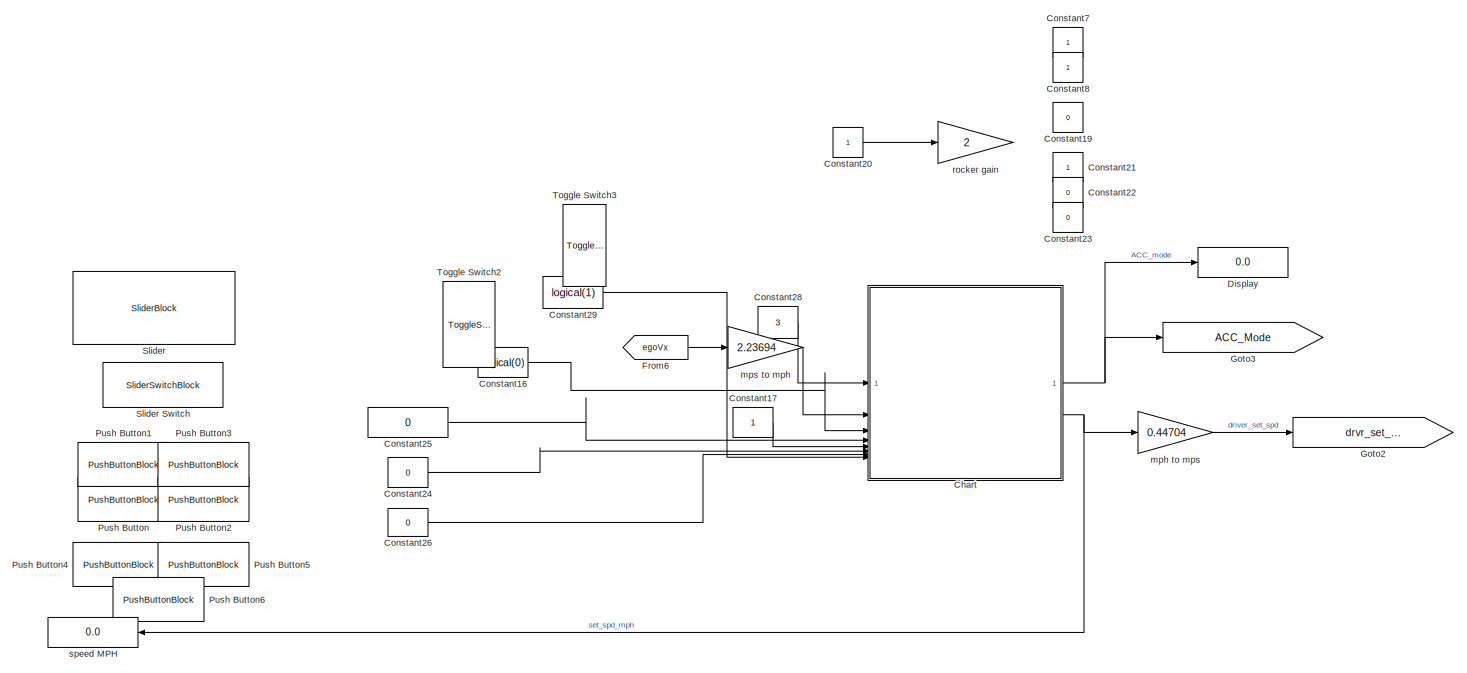
[diagram: root canvas - part 1/6, top center region]
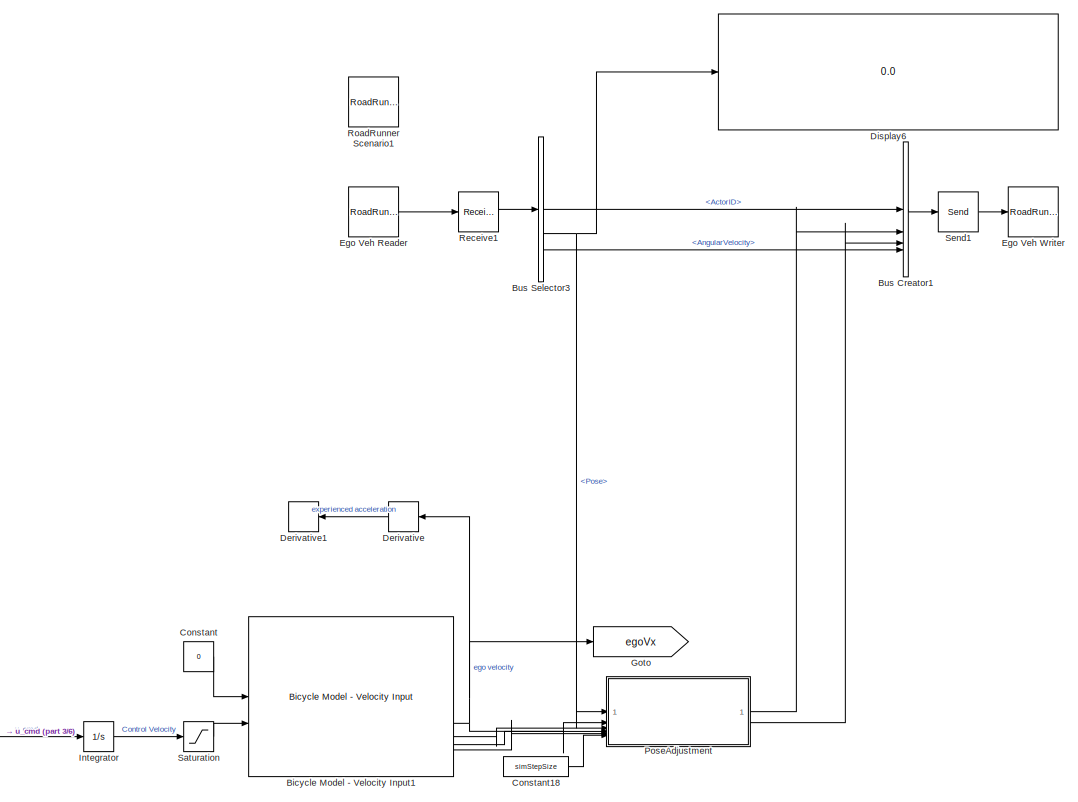
[diagram: root canvas - part 2/6, middle right region]
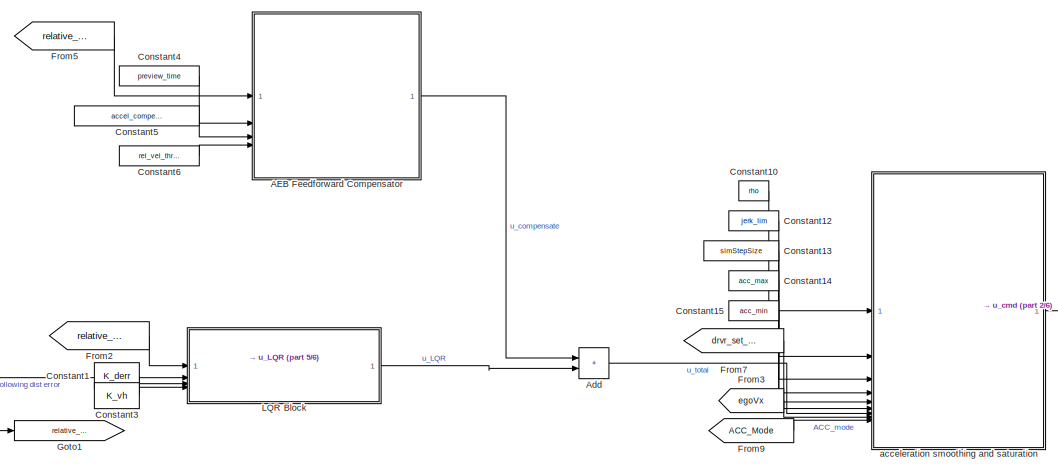
[diagram: root canvas - part 3/6, central region]
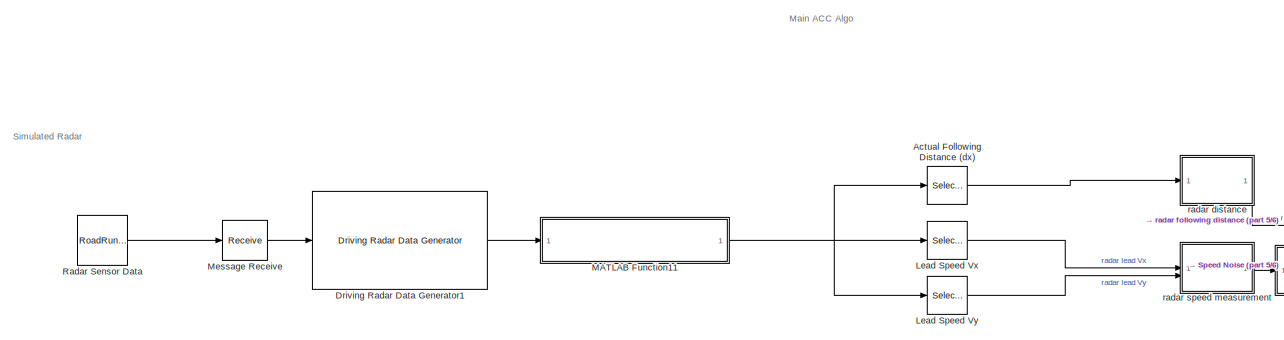
[diagram: root canvas - part 4/6, bottom left region]
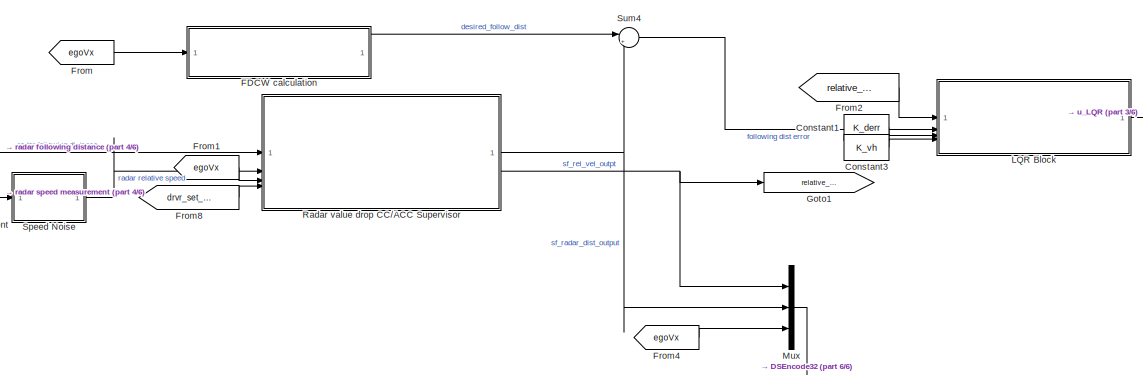
[diagram: root canvas - part 5/6, bottom center region]
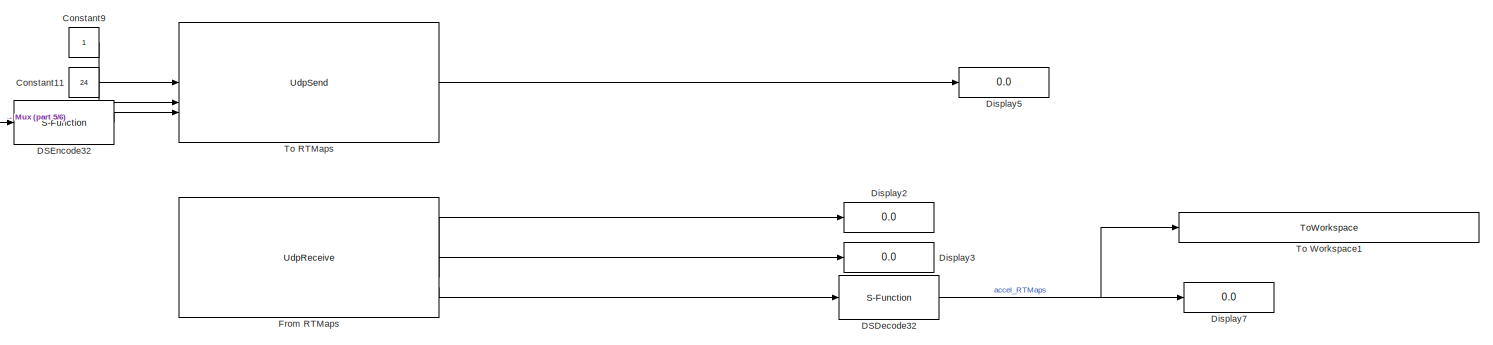
[diagram: root canvas - part 6/6, bottom right region]
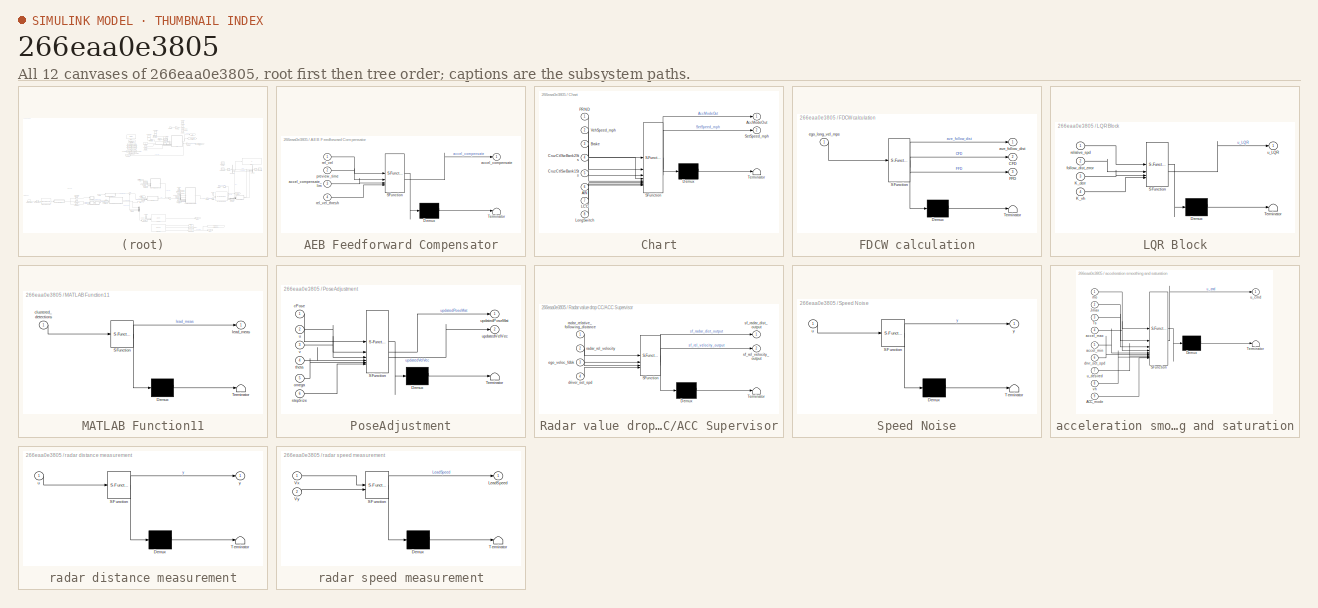
[diagram: thumbnail index - all 12 canvases of the model, root first then tree order]
MODEL slx_266eaa0e3805
KIND model
CONFIG AbsTol = auto
CONFIG EnableMultiTasking = off
CONFIG FixedStep = auto
CONFIG MaxStep = auto
CONFIG MinStep = auto
CONFIG RelTol = 1e-3
CONFIG SampleTimeConstraint = Unconstrained
CONFIG SolverName = VariableStepAuto
CONFIG StartTime = 0.0
CONFIG StopTime = 10.0
BLOCK [SubSystem] AEB Feedforward Compensator
  ErrorFcn = Stateflow.Translate.translate
  PermitHierarchicalResolution = ExplicitOnly
  SFBlockType = MATLAB Function
  TreatAsAtomicUnit = on
BLOCK [Demux] AEB Feedforward Compensator/ Demux 
  Outputs = 1
BLOCK [S-Function] AEB Feedforward Compensator/ SFunction 
  EnableBusSupport = on
  FunctionName = sf_sfun
  PortCounts = [4 2]
  SFcnIsStateOwnerBlock = off
  SFunctionDeploymentMode = off
  Tag = Stateflow S-Function 2
BLOCK [Terminator] AEB Feedforward Compensator/ Terminator 
BLOCK [Outport] AEB Feedforward Compensator/accel_compensate
BLOCK [Inport] AEB Feedforward Compensator/accel_compensate_lim
  Port = 3
BLOCK [Inport] AEB Feedforward Compensator/preview_time
  Port = 2
BLOCK [Inport] AEB Feedforward Compensator/rel_vel
BLOCK [Inport] AEB Feedforward Compensator/rel_vel_thresh
  Port = 4
BLOCK [Selector] Actual Following Distance (dx)
  IndexOptions = Index vector (dialog)
  Indices = [1]
  InputPortWidth = 6
  OutputSizes = 1
BLOCK [Sum] Add
  IconShape = rectangular
BLOCK [Reference] Bicycle Model - Velocity Input1  REF=autolibshared/Bicycle Model - Velocity Input
  LibrarySourceBlock = drivingscenarioandsensors/Bicycle Model - Velocity Input
  SourceBlock = autolibshared/Bicycle Model - Velocity Input
  SourceType = Vehicle Body 3DOF Lateral
BLOCK [BusCreator] Bus Creator1
  DisplayOption = bar
  InheritFromInputs = off
  Inputs = 4
  NonVirtualBus = on
  OutDataTypeStr = Bus: BusActorRuntime
BLOCK [BusSelector] Bus Selector3
  OutputSignals = ActorID,Pose,Velocity,AngularVelocity
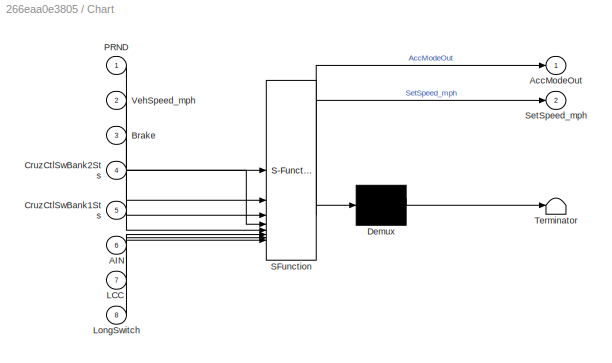
BLOCK [SubSystem] Chart
  ErrorFcn = Stateflow.Translate.translate
  PermitHierarchicalResolution = ExplicitOnly
  PortSchema = {"entries":[{"content":{"sides":[{"content":{"connectorIds":["In8","In1","In2","In3","In4","In5","In6","In7"]},"type":"ConnectorPlacement.EquallySpacedRectSide","uuid":"e85dcfe6-766c-482d-aa65-e7bbb4e3e1c4"},{"content":{"connectorIds":["Out1","Out2"],"side":"RIGHT"},"type":"ConnectorPlacement.EquallySpacedRectSide","uuid":"3867670f-d709-4b15-a3fa-6089a5f96600"},{"content":{"side":"TOP"},"type":"Co...<+271ch>
  SFBlockType = Chart
  TreatAsAtomicUnit = on
BLOCK [Demux] Chart/ Demux 
  Outputs = 1
BLOCK [S-Function] Chart/ SFunction 
  EnableBusSupport = on
  FunctionName = sf_sfun
  PortCounts = [8 3]
  SFcnIsStateOwnerBlock = off
  SFunctionDeploymentMode = off
  Tag = Stateflow S-Function 5
BLOCK [Terminator] Chart/ Terminator 
BLOCK [Inport] Chart/AIN
  Port = 6
BLOCK [Outport] Chart/AccModeOut
BLOCK [Inport] Chart/Brake
  Port = 3
BLOCK [Inport] Chart/CruzCtlSwBank1Sts
  Port = 5
BLOCK [Inport] Chart/CruzCtlSwBank2Sts
  Port = 4
BLOCK [Inport] Chart/LCC
  Port = 7
BLOCK [Inport] Chart/LongSwitch
  Port = 8
BLOCK [Inport] Chart/PRND
BLOCK [Outport] Chart/SetSpeed_mph
  Port = 2
BLOCK [Inport] Chart/VehSpeed_mph
  Port = 2
BLOCK [Constant] Constant
  Value = 0
BLOCK [Constant] Constant1
  SampleTime = simStepSize
  Value = K_derr
BLOCK [Constant] Constant10
  Value = rho
BLOCK [Constant] Constant11
  Value = 24
BLOCK [Constant] Constant12
  Value = jerk_lim
BLOCK [Constant] Constant13
  Value = simStepSize
BLOCK [Constant] Constant14
  Value = acc_max
BLOCK [Constant] Constant15
  Value = acc_min
BLOCK [Constant] Constant16
  OutDataTypeStr = boolean
  Value = logical(0)
BLOCK [Constant] Constant17
BLOCK [Constant] Constant18
  Value = simStepSize
BLOCK [Constant] Constant19
  Value = 0
BLOCK [Constant] Constant20
BLOCK [Constant] Constant21
BLOCK [Constant] Constant22
  Value = 0
BLOCK [Constant] Constant23
  Value = 0
BLOCK [Constant] Constant24
  OutDataTypeStr = boolean
  Value = 0
BLOCK [Constant] Constant25
  Value = 0
BLOCK [Constant] Constant26
  OutDataTypeStr = boolean
  Value = 0
BLOCK [Constant] Constant28
  Value = 3
BLOCK [Constant] Constant29
  OutDataTypeStr = boolean
  Value = logical(1)
BLOCK [Constant] Constant3
  SampleTime = simStepSize
  Value = K_vh
BLOCK [Constant] Constant4
  Value = preview_time
BLOCK [Constant] Constant5
  Value = accel_compensate_lim
BLOCK [Constant] Constant6
  Value = rel_vel_thresh
BLOCK [Constant] Constant7
BLOCK [Constant] Constant8
  NameLocation = left
BLOCK [Constant] Constant9
BLOCK [S-Function] DSDecode32 
  EnableBusSupport = off
  FunctionName = ds867c_eth_decode32_sfcn
  Parameters = byteordering,offset,auto_offset,datatype,one_datatype,sampletime
  SFcnIsStateOwnerBlock = off
  SFunctionDeploymentMode = off
BLOCK [S-Function] DSEncode32
  EnableBusSupport = off
  FunctionName = ds867c_eth_encode32_sfcn
  Parameters = byteordering,offset,auto_offset,datatype,one_datatype,sampletime
  SFcnIsStateOwnerBlock = off
  SFunctionDeploymentMode = off
BLOCK [Derivative] Derivative
BLOCK [Derivative] Derivative1
BLOCK [Display] Display
  Decimation = 1
BLOCK [Display] Display2
  Decimation = 1
BLOCK [Display] Display3
  Decimation = 1
BLOCK [Display] Display5
  Decimation = 1
BLOCK [Display] Display6
  Decimation = 1
BLOCK [Display] Display7
  Decimation = 1
BLOCK [Reference] Driving Radar Data Generator1  REF=drivingscenarioandsensors/Driving Radar Data Generator
  SourceBlock = drivingscenarioandsensors/Driving Radar Data Generator
  SourceType = drivingRadarDataGenerator
BLOCK [Reference] Ego Veh Reader  REF=roadrunnerscenario/RoadRunner Scenario
Reader
  SourceBlock = roadrunnerscenario/RoadRunner Scenario\nReader
BLOCK [Reference] Ego Veh Writer  REF=roadrunnerscenario/RoadRunner Scenario
Writer
  SourceBlock = roadrunnerscenario/RoadRunner Scenario\nWriter
BLOCK [SubSystem] FDCW calculation
  ErrorFcn = Stateflow.Translate.translate
  PermitHierarchicalResolution = ExplicitOnly
  SFBlockType = MATLAB Function
  TreatAsAtomicUnit = on
BLOCK [Demux] FDCW calculation/ Demux 
  Outputs = 1
BLOCK [S-Function] FDCW calculation/ SFunction 
  EnableBusSupport = on
  FunctionName = sf_sfun
  PortCounts = [1 4]
  SFcnIsStateOwnerBlock = off
  SFunctionDeploymentMode = off
  Tag = Stateflow S-Function 23
BLOCK [Terminator] FDCW calculation/ Terminator 
BLOCK [Outport] FDCW calculation/CFD
  Port = 2
BLOCK [Outport] FDCW calculation/FFD
  Port = 3
BLOCK [Outport] FDCW calculation/ave_follow_dist
BLOCK [Inport] FDCW calculation/ego_long_vel_mps
BLOCK [From] From
  GotoTag = egoVx
BLOCK [Reference] From RTMaps  REF=dsa_UDP_Blockset/UdpReceive
  SourceBlock = dsa_UDP_Blockset/UdpReceive
  SourceType = DSA_UDP_RECEIVE
BLOCK [From] From1
  GotoTag = egoVx
BLOCK [From] From2
  GotoTag = relative_velocity
BLOCK [From] From3
  GotoTag = egoVx
BLOCK [From] From4
  GotoTag = egoVx
BLOCK [From] From5
  GotoTag = relative_velocity
BLOCK [From] From6
  GotoTag = egoVx
BLOCK [From] From7
  GotoTag = drvr_set_spd
BLOCK [From] From8
  GotoTag = drvr_set_spd
BLOCK [From] From9
  GotoTag = ACC_Mode
BLOCK [Goto] Goto
  GotoTag = egoVx
BLOCK [Goto] Goto1
  GotoTag = relative_velocity
BLOCK [Goto] Goto2
  GotoTag = drvr_set_spd
BLOCK [Goto] Goto3
  GotoTag = ACC_Mode
BLOCK [Integrator] Integrator
BLOCK [SubSystem] LQR Block
  ErrorFcn = Stateflow.Translate.translate
  PermitHierarchicalResolution = ExplicitOnly
  SFBlockType = MATLAB Function
  SystemSampleTime = simStepSize
  TreatAsAtomicUnit = on
BLOCK [Demux] LQR Block/ Demux 
  Outputs = 1
BLOCK [S-Function] LQR Block/ SFunction 
  EnableBusSupport = on
  FunctionName = sf_sfun
  PortCounts = [4 2]
  SFcnIsStateOwnerBlock = off
  SFunctionDeploymentMode = off
  Tag = Stateflow S-Function 1
BLOCK [Terminator] LQR Block/ Terminator 
BLOCK [Inport] LQR Block/K_derr
  Port = 3
BLOCK [Inport] LQR Block/K_vh
  Port = 4
BLOCK [Inport] LQR Block/follow_dist_error
  Port = 2
BLOCK [Inport] LQR Block/relative_spd
BLOCK [Outport] LQR Block/u_LQR
BLOCK [Selector] Lead Speed Vx
  IndexOptions = Index vector (dialog)
  Indices = 4
  InputPortWidth = 6
  OutputSizes = 1
BLOCK [Selector] Lead Speed Vy
  IndexOptions = Index vector (dialog)
  Indices = 5
  InputPortWidth = 6
  NameLocation = top
  OutputSizes = 1
BLOCK [SubSystem] MATLAB Function11
  ErrorFcn = Stateflow.Translate.translate
  PermitHierarchicalResolution = ExplicitOnly
  SFBlockType = MATLAB Function
  TreatAsAtomicUnit = on
BLOCK [Demux] MATLAB Function11/ Demux 
  Outputs = 1
BLOCK [S-Function] MATLAB Function11/ SFunction 
  EnableBusSupport = on
  FunctionName = sf_sfun
  PortCounts = [1 2]
  SFcnIsStateOwnerBlock = off
  SFunctionDeploymentMode = off
  Tag = Stateflow S-Function 22
BLOCK [Terminator] MATLAB Function11/ Terminator 
BLOCK [Inport] MATLAB Function11/clustered_detections
BLOCK [Outport] MATLAB Function11/lead_meas
BLOCK [Receive] Message Receive
  InputPortMap = u0
  InputPortMessageModes = m
  OutputPortMap = o1
  UseInternalQueue = off
BLOCK [Mux] Mux
  DisplayOption = bar
  Inputs = 3
BLOCK [SubSystem] PoseAdjustment
  ErrorFcn = Stateflow.Translate.translate
  PermitHierarchicalResolution = ExplicitOnly
  SFBlockType = MATLAB Function
  TreatAsAtomicUnit = on
BLOCK [Demux] PoseAdjustment/ Demux 
  Outputs = 1
BLOCK [S-Function] PoseAdjustment/ SFunction 
  EnableBusSupport = on
  FunctionName = sf_sfun
  PortCounts = [6 3]
  SFcnIsStateOwnerBlock = off
  SFunctionDeploymentMode = off
  Tag = Stateflow S-Function 12
BLOCK [Terminator] PoseAdjustment/ Terminator 
BLOCK [Inport] PoseAdjustment/cPose
BLOCK [Inport] PoseAdjustment/omega
  Port = 5
BLOCK [Inport] PoseAdjustment/stepSize
  Port = 6
BLOCK [Inport] PoseAdjustment/theta
  Port = 4
BLOCK [Inport] PoseAdjustment/u
  Port = 2
BLOCK [Outport] PoseAdjustment/updatedPoseMat
BLOCK [Outport] PoseAdjustment/updatedVelVec
  Port = 2
BLOCK [Inport] PoseAdjustment/v
  Port = 3
BLOCK [PushButtonBlock] Push Button
  ButtonText = SetShort
  OffValue = 0.000000
BLOCK [PushButtonBlock] Push Button1
  ButtonText = ResumeShort
  OffValue = 0.000000
  OnValue = 2
BLOCK [PushButtonBlock] Push Button2
  ButtonText = DecHigh
  OffValue = 0.000000
  OnValue = 3
BLOCK [PushButtonBlock] Push Button3
  ButtonText = IncHigh
  OffValue = 0.000000
  OnValue = 4
BLOCK [PushButtonBlock] Push Button4
  ButtonText = Off
  ButtonType = Latch
  OffValue = 1.000000
  OnValue = 0
BLOCK [PushButtonBlock] Push Button5
  ButtonText = On
  ButtonType = Latch
  OffValue = 1.000000
BLOCK [PushButtonBlock] Push Button6
  ButtonText = Cancel
  ButtonType = Latch
  OffValue = 1.000000
  OnValue = 2
BLOCK [Reference] Radar Sensor Data  REF=roadrunnerscenario/RoadRunner Scenario
Reader
  SourceBlock = roadrunnerscenario/RoadRunner Scenario\nReader
BLOCK [SubSystem] Radar value drop CC//ACC Supervisor
  ErrorFcn = Stateflow.Translate.translate
  PermitHierarchicalResolution = ExplicitOnly
  SFBlockType = Chart
  TreatAsAtomicUnit = on
BLOCK [Demux] Radar value drop CC//ACC Supervisor/ Demux 
  Outputs = 1
BLOCK [S-Function] Radar value drop CC//ACC Supervisor/ SFunction 
  EnableBusSupport = on
  FunctionName = sf_sfun
  PortCounts = [4 3]
  SFcnIsStateOwnerBlock = off
  SFunctionDeploymentMode = off
  Tag = Stateflow S-Function 3
BLOCK [Terminator] Radar value drop CC//ACC Supervisor/ Terminator 
BLOCK [Inport] Radar value drop CC//ACC Supervisor/driver_set_spd
  Port = 4
BLOCK [Inport] Radar value drop CC//ACC Supervisor/ego_veloc_fdbk
  Port = 3
BLOCK [Inport] Radar value drop CC//ACC Supervisor/radar_rel_velocity
  Port = 2
BLOCK [Inport] Radar value drop CC//ACC Supervisor/radar_relative_following_distance
BLOCK [Outport] Radar value drop CC//ACC Supervisor/sf_radar_dist_output
BLOCK [Outport] Radar value drop CC//ACC Supervisor/sf_rel_velocity_output
  Port = 2
BLOCK [Receive] Receive1
  InputPortMap = u0
  InputPortMessageModes = m
  OutputPortMap = o1
  QueueLength = 1
  QueueOverwriting = on
  QueueType = LIFO
  UseInternalQueue = off
BLOCK [Reference] RoadRunner Scenario1  REF=roadrunnerscenario/RoadRunner Scenario
  SourceBlock = roadrunnerscenario/RoadRunner Scenario
BLOCK [Saturate] Saturation
  Commented = through
  LowerLimit = 0
  UpperLimit = driver_set_speed
BLOCK [Send] Send1
  InputPortMap = u1
  OutputPortMessageModes = m
BLOCK [SliderBlock] Slider
BLOCK [SliderSwitchBlock] Slider Switch
BLOCK [SubSystem] Speed Noise
  ErrorFcn = Stateflow.Translate.translate
  PermitHierarchicalResolution = ExplicitOnly
  SFBlockType = MATLAB Function
  TreatAsAtomicUnit = on
BLOCK [Demux] Speed Noise/ Demux 
  Outputs = 1
BLOCK [S-Function] Speed Noise/ SFunction 
  EnableBusSupport = on
  FunctionName = sf_sfun
  PortCounts = [1 2]
  SFcnIsStateOwnerBlock = off
  SFunctionDeploymentMode = off
  Tag = Stateflow S-Function 15
BLOCK [Terminator] Speed Noise/ Terminator 
BLOCK [Inport] Speed Noise/u
BLOCK [Outport] Speed Noise/y
BLOCK [Sum] Sum4
  Inputs = |+-
BLOCK [Reference] To RTMaps  REF=dsa_UDP_Blockset/UdpSend
  SourceBlock = dsa_UDP_Blockset/UdpSend
  SourceType = DSA_UDP_SEND
BLOCK [ToWorkspace] To Workspace1
  FixptAsFi = on
  MaxDataPoints = inf
  SampleTime = -1
  SaveFormat = Timeseries
  VariableName = RTMapsLQR_inpt_from_SL1
BLOCK [ToggleSwitchBlock] Toggle Switch2
BLOCK [ToggleSwitchBlock] Toggle Switch3
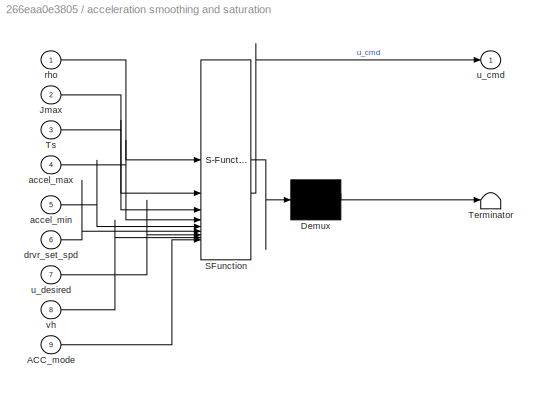
BLOCK [SubSystem] acceleration smoothing and saturation
  ErrorFcn = Stateflow.Translate.translate
  PermitHierarchicalResolution = ExplicitOnly
  SFBlockType = MATLAB Function
  SystemSampleTime = simStepSize
  TreatAsAtomicUnit = on
BLOCK [Demux] acceleration smoothing and saturation/ Demux 
  Outputs = 1
BLOCK [S-Function] acceleration smoothing and saturation/ SFunction 
  EnableBusSupport = on
  FunctionName = sf_sfun
  PortCounts = [9 2]
  SFcnIsStateOwnerBlock = off
  SFunctionDeploymentMode = off
  Tag = Stateflow S-Function 4
BLOCK [Terminator] acceleration smoothing and saturation/ Terminator 
BLOCK [Inport] acceleration smoothing and saturation/ACC_mode
  Port = 9
BLOCK [Inport] acceleration smoothing and saturation/Jmax
  Port = 2
BLOCK [Inport] acceleration smoothing and saturation/Ts
  Port = 3
BLOCK [Inport] acceleration smoothing and saturation/accel_max
  Port = 4
BLOCK [Inport] acceleration smoothing and saturation/accel_min
  Port = 5
BLOCK [Inport] acceleration smoothing and saturation/drvr_set_spd
  Port = 6
BLOCK [Inport] acceleration smoothing and saturation/rho
BLOCK [Outport] acceleration smoothing and saturation/u_cmd
BLOCK [Inport] acceleration smoothing and saturation/u_desired
  Port = 7
BLOCK [Inport] acceleration smoothing and saturation/vh
  Port = 8
BLOCK [Gain] mph to mps
  Gain = 0.44704
BLOCK [Gain] mps to mph
  Gain = 2.23694
BLOCK [SubSystem] radar distance measurement
  ErrorFcn = Stateflow.Translate.translate
  PermitHierarchicalResolution = ExplicitOnly
  SFBlockType = MATLAB Function
  TreatAsAtomicUnit = on
BLOCK [Demux] radar distance measurement/ Demux 
  Outputs = 1
BLOCK [S-Function] radar distance measurement/ SFunction 
  EnableBusSupport = on
  FunctionName = sf_sfun
  PortCounts = [1 2]
  SFcnIsStateOwnerBlock = off
  SFunctionDeploymentMode = off
  Tag = Stateflow S-Function 13
BLOCK [Terminator] radar distance measurement/ Terminator 
BLOCK [Inport] radar distance measurement/u
BLOCK [Outport] radar distance measurement/y
BLOCK [SubSystem] radar speed measurement
  ErrorFcn = Stateflow.Translate.translate
  PermitHierarchicalResolution = ExplicitOnly
  SFBlockType = MATLAB Function
  TreatAsAtomicUnit = on
BLOCK [Demux] radar speed measurement/ Demux 
  Outputs = 1
BLOCK [S-Function] radar speed measurement/ SFunction 
  EnableBusSupport = on
  FunctionName = sf_sfun
  PortCounts = [2 2]
  SFcnIsStateOwnerBlock = off
  SFunctionDeploymentMode = off
  Tag = Stateflow S-Function 14
BLOCK [Terminator] radar speed measurement/ Terminator 
BLOCK [Outport] radar speed measurement/LeadSpeed
BLOCK [Inport] radar speed measurement/Vx
BLOCK [Inport] radar speed measurement/Vy
  Port = 2
BLOCK [Gain] rocker gain
  Gain = 2
BLOCK [Display] speed MPH
  Decimation = 1
ANNOTATION (root): Main ACC Algo
ANNOTATION (root): Simulated Radar
LINE AEB Feedforward Compensator:1 -> Add:1
LINE Actual Following Distance (dx):1 -> radar distance measurement:1
LINE Add:1 -> acceleration smoothing and saturation:7
NET Bicycle Model - Velocity Input1:2 -> Derivative:1, Goto:1, PoseAdjustment:2
LINE Bicycle Model - Velocity Input1:3 -> PoseAdjustment:3
LINE Bicycle Model - Velocity Input1:4 -> PoseAdjustment:4
LINE Bicycle Model - Velocity Input1:5 -> PoseAdjustment:5
LINE Bus Creator1:1 -> Send1:1
LINE Bus Selector3:1 -> Bus Creator1:1
NET Bus Selector3:2 -> Display6:1, PoseAdjustment:1
LINE Bus Selector3:4 -> Bus Creator1:4
NET Chart:1 -> Display:1, Goto3:1
NET Chart:2 -> mph to mps:1, speed MPH:1
LINE Constant10:1 -> acceleration smoothing and saturation:1
LINE Constant11:1 -> To RTMaps:2
LINE Constant12:1 -> acceleration smoothing and saturation:2
LINE Constant13:1 -> acceleration smoothing and saturation:3
LINE Constant14:1 -> acceleration smoothing and saturation:4
LINE Constant15:1 -> acceleration smoothing and saturation:5
LINE Constant16:1 -> Chart:3
LINE Constant17:1 -> Chart:5
LINE Constant18:1 -> PoseAdjustment:6
LINE Constant1:1 -> LQR Block:3
LINE Constant20:1 -> rocker gain:1
LINE Constant24:1 -> Chart:6
LINE Constant25:1 -> Chart:4
LINE Constant26:1 -> Chart:7
LINE Constant28:1 -> Chart:1
LINE Constant29:1 -> Chart:8
LINE Constant3:1 -> LQR Block:4
LINE Constant4:1 -> AEB Feedforward Compensator:2
LINE Constant5:1 -> AEB Feedforward Compensator:3
LINE Constant6:1 -> AEB Feedforward Compensator:4
LINE Constant9:1 -> To RTMaps:1
LINE Constant:1 -> Bicycle Model - Velocity Input1:1
NET DSDecode32 :1 -> Display7:1, To Workspace1:1
LINE DSEncode32:1 -> To RTMaps:3
LINE Derivative:1 -> Derivative1:1
LINE Driving Radar Data Generator1:1 -> MATLAB Function11:1
LINE Ego Veh Reader:1 -> Receive1:1
LINE FDCW calculation:1 -> Sum4:1
LINE From RTMaps:1 -> Display2:1
LINE From RTMaps:2 -> Display3:1
LINE From RTMaps:3 -> DSDecode32 :1
LINE From1:1 -> Radar value drop CC//ACC Supervisor:3
LINE From2:1 -> LQR Block:1
LINE From3:1 -> acceleration smoothing and saturation:8
LINE From4:1 -> Mux:3
LINE From5:1 -> AEB Feedforward Compensator:1
LINE From6:1 -> mps to mph:1
LINE From7:1 -> acceleration smoothing and saturation:6
LINE From8:1 -> Radar value drop CC//ACC Supervisor:4
LINE From9:1 -> acceleration smoothing and saturation:9
LINE From:1 -> FDCW calculation:1
LINE Integrator:1 -> Saturation:1
LINE LQR Block:1 -> Add:2
LINE Lead Speed Vx:1 -> radar speed measurement:1
LINE Lead Speed Vy:1 -> radar speed measurement:2
NET MATLAB Function11:1 -> Actual Following Distance (dx):1, Lead Speed Vx:1, Lead Speed Vy:1
LINE Message Receive:1 -> Driving Radar Data Generator1:1
LINE Mux:1 -> DSEncode32:1
LINE PoseAdjustment:1 -> Bus Creator1:2
LINE PoseAdjustment:2 -> Bus Creator1:3
LINE Radar Sensor Data:1 -> Message Receive:1
NET Radar value drop CC//ACC Supervisor:1 -> Mux:2, Sum4:2
NET Radar value drop CC//ACC Supervisor:2 -> Goto1:1, Mux:1
LINE Receive1:1 -> Bus Selector3:1
LINE Saturation:1 -> Bicycle Model - Velocity Input1:2
LINE Send1:1 -> Ego Veh Writer:1
LINE Speed Noise:1 -> Radar value drop CC//ACC Supervisor:2
LINE Sum4:1 -> LQR Block:2
LINE To RTMaps:1 -> Display5:1
LINE acceleration smoothing and saturation:1 -> Integrator:1
LINE mph to mps:1 -> Goto2:1
LINE mps to mph:1 -> Chart:2
LINE radar distance measurement:1 -> Radar value drop CC//ACC Supervisor:1
LINE radar speed measurement:1 -> Speed Noise:1
note: NET lines group one-source signal fan-out (src -> all destinations, sorted); 1:1 wires keep LINE
CHART Test Sequence states=3 transitions=6
  STATE_LABEL 'Run\n\n%% Initialize data outputs.\nPRND = 0;\nVehSpeed_kph = 0;\nCruzCtlSwBank2Sts = 0;\nCruzCtlSwBank1Sts = 0;'
  STATE_LABEL 'step_1'
  STATE_LABEL 'step_2'
CHART acceleration smoothing and saturation states=1 transitions=1
  STATE_LABEL 'eML_blk_kernel()'
  STATE_LABEL "SCRIPT:\nfunction u_cmd = fcn(rho, Jmax, Ts, accel_max, accel_min, drvr_set_spd, u_desired, vh,  ACC_mode)\n% This function is the smoothing step that determines a commanded control\n% signal based on minimizing the following QP : J(u) = (u-u_lqr)^2 + rho*(u - uk_minus_1)^2\n\npersistent u_k_minus_1\nif isempty(u_k_minus_1)\n    u_k_minus_1 = 0.0;\nend\n\n% ACC mode has values [0,1,2]==['off','armed','activ...<+1471ch>"
CHART Chart states=4 transitions=11
  STATE_LABEL 'ok = precondsOK(SteeringInput, Speed, isBraking, AIN_Active, LCC_Active)'
  STATE_LABEL 'SCRIPT:\nfunction ok = precondsOK(SteeringInput, Speed, isBraking, AIN_Active, LCC_Active)\n%#codegen\n\n    % --- Determine allowable maximum speed ---\n    % Default max speed (normal ACC)\n    maxSpeed = 65;\n\n    % If AIN is active, reduce to 55\n    if AIN_Active\n        maxSpeed = 55;\n    end\n\n    % If LCC is active, reduce even further to 35 (overrides AIN)\n    if LCC_Active\n        maxSpeed = 35;\n...<+192ch>'
  STATE_LABEL 'Armed\nentry:\nAccModeOut = 1;'
  STATE_LABEL 'Off\nentry:\nAccModeOut = 0;'
  STATE_LABEL 'Engaged\nentry:\nAccModeOut = 2;\n'
CHART PoseAdjustment states=1 transitions=1
  STATE_LABEL 'eML_blk_kernel()'
  STATE_LABEL 'SCRIPT:\nfunction [updatedPoseMat, updatedVelVec] = fcn(cPose, u, v, theta, omega, stepSize)\n    thetad = theta + omega*stepSize;\n    xd = (u*cos(theta) - v*sin(theta))*stepSize;\n    yd = (u*sin(theta) + v*cos(theta))*stepSize;\n    pose_mat = [cos(-thetad) -sin(-thetad) 0 (yd+cPose(1,4)); sin(-thetad) cos(-thetad) 0 (xd+cPose(2,4)); 0 0 1 0; 0 0 0 1];\n    updatedPoseMat = pose_mat;\n    updatedVelVe...<+83ch>'
CHART radar distance measurement states=1 transitions=1
  STATE_LABEL 'eML_blk_kernel()'
  STATE_LABEL 'SCRIPT:\nfunction y = removeSpikes(u)\n\n    persistent buffer;\n    persistent bufferIndex;\n    threshold = 2;\n    windowSize = 15;\n    % windowSize = 4;\n    \n    if isempty(buffer)\n        buffer = zeros(1, windowSize);\n        bufferIndex = 1;\n    end\n    \n    % Update buffer with new value\n    buffer(bufferIndex) = u;\n    bufferIndex = mod(bufferIndex, windowSize) + 1;\n    \n    % Calculate the med...<+257ch>'
CHART radar speed measurement states=1 transitions=1
  STATE_LABEL 'eML_blk_kernel()'
  STATE_LABEL 'SCRIPT:\nfunction LeadSpeed = fcn(Vx, Vy)\n\nif Vx == 0 && Vy == 0 \n    Vx = 0.01;\n    Vy = 0.01;\nelseif Vy == 0\n    Vy = 0.01;\nelseif Vx == 0\n    Vx = 0.01;\nend\n\nif Vx <= 0\n    LeadSpeed = -sqrt(Vx^2 + Vy^2);\nelse\n    LeadSpeed = sqrt(Vx^2 + Vy^2);\nend\n\n'
CHART Speed Noise states=1 transitions=1
  STATE_LABEL 'eML_blk_kernel()'
  STATE_LABEL 'SCRIPT:\nfunction y = removeSpikes(u)\n    % removeSpikes - Removes spikes from a scalar signal based on a threshold\n    %\n    % Inputs:\n    %    u - The input signal (scalar)\n    %    threshold - The threshold value to detect spikes\n    %    windowSize - The size of the window for calculating the median\n    %\n    % Outputs:\n    %    y - The filtered signal with spikes removed\n\n    % Declare persist...<+655ch>'
CHART MATLAB Function11 states=1 transitions=1
  STATE_LABEL 'eML_blk_kernel()'
  STATE_LABEL 'SCRIPT:\nfunction lead_meas = fcn(clustered_detections)\n\nlead_det = clustered_detections.Detections(1);\nlead_meas = lead_det.Measurement;\n\n% relative_dist = sqrt(lead_det.Measurement(1)^2 + lead_det.Measurement(2)^2); % rel_dist = sqrt(x^2+y^2)\n% relative_speed = sqrt(lead_det.Measurement(4)^2 + lead_det.Measurement(5)^2);\nend'
CHART FDCW calculation states=1 transitions=1
  STATE_LABEL 'eML_blk_kernel()'
  STATE_LABEL "SCRIPT:\n% Function to determine the closest (CFD) and furthest follow distance (FFD) for the\n% ego vehicle relative to the lead vehicle given the ego vehicle's current\n% velocity\n\n% This function outputs the middle distance value between the CFD and FFD\n% and those values respectively as well\n\nfunction [ave_follow_dist, CFD, FFD] = fcn(ego_long_vel_mps)\n    persistent dist_history window_size smoo...<+1228ch>"
CHART LQR Block states=1 transitions=1
  STATE_LABEL 'eML_blk_kernel()'
  STATE_LABEL 'SCRIPT:\nfunction u_LQR = fcn(relative_spd, follow_dist_error, K_derr, K_vh)\nu_LQR = -K_derr*follow_dist_error-K_vh*relative_spd;\n'
CHART AEB Feedforward Compensator states=1 transitions=1
  STATE_LABEL 'eML_blk_kernel()'
  STATE_LABEL 'SCRIPT:\nfunction accel_compensate = fcn(rel_vel, preview_time, accel_compensate_lim, rel_vel_thresh)\n\nif rel_vel > -rel_vel_thresh\n    accel_compensate = 0.0;\n    return;\nend\n\naccel_compensate = rel_vel/preview_time;'
CHART Radar value drop CC//ACC Supervisor states=3 transitions=3
  STATE_LABEL 'Radar_State_Lead_Veh_Present_and_Detected\n\nsf_radar_dist_output = radar_relative_following_distance;\nsf_rel_velocity_output = radar_rel_velocity;\ncounter = counter + 1; % updates by 1 every time step; to wait to give the radar time to initialize in simulation\n'
  STATE_LABEL 'filtered_val = smooth_switch(prev_val, curr_val, dt, tau)'
  STATE_LABEL 'SCRIPT:\nfunction filtered_val = smooth_switch(prev_val, curr_val, dt, tau)\n% Smooth transition from prev_val toward curr_val\n% dt  = sample time [s]; equal to system sample time of 0.05s currently\n% tau = time constant [s] (0.3–1.0 typical)\n\nif isempty(prev_val)\n    prev_val = 0;\nend\n\nalpha = exp(-dt/tau);\nfiltered_val = alpha*prev_val + (1-alpha)*curr_val;\nend'
  STATE_LABEL 'Output_Spoof_To_Keep_Moving\n\n%sf_radar_dist_output = 150;\nsf_radar_dist_output = smooth_switch(sf_radar_dist_output, 70, 0.05, 2);\nset_spd_err = driver_set_spd - ego_veloc_fdbk;\nsf_rel_velocity_output = set_spd_err;\n% sf_rel_velocity_output = smooth_switch(sf_rel_velocity_output, set_spd_err, 0.05, 5);'
CHART  states=0 transitions=0
CHART  states=0 transitions=0
CHART  states=0 transitions=0
CHART  states=0 transitions=0
CHART  states=0 transitions=0
CHART  states=0 transitions=0
CHART  states=0 transitions=0
CHART  states=0 transitions=0
CHART  states=0 transitions=0
CHART  states=0 transitions=0
CHART  states=0 transitions=0
